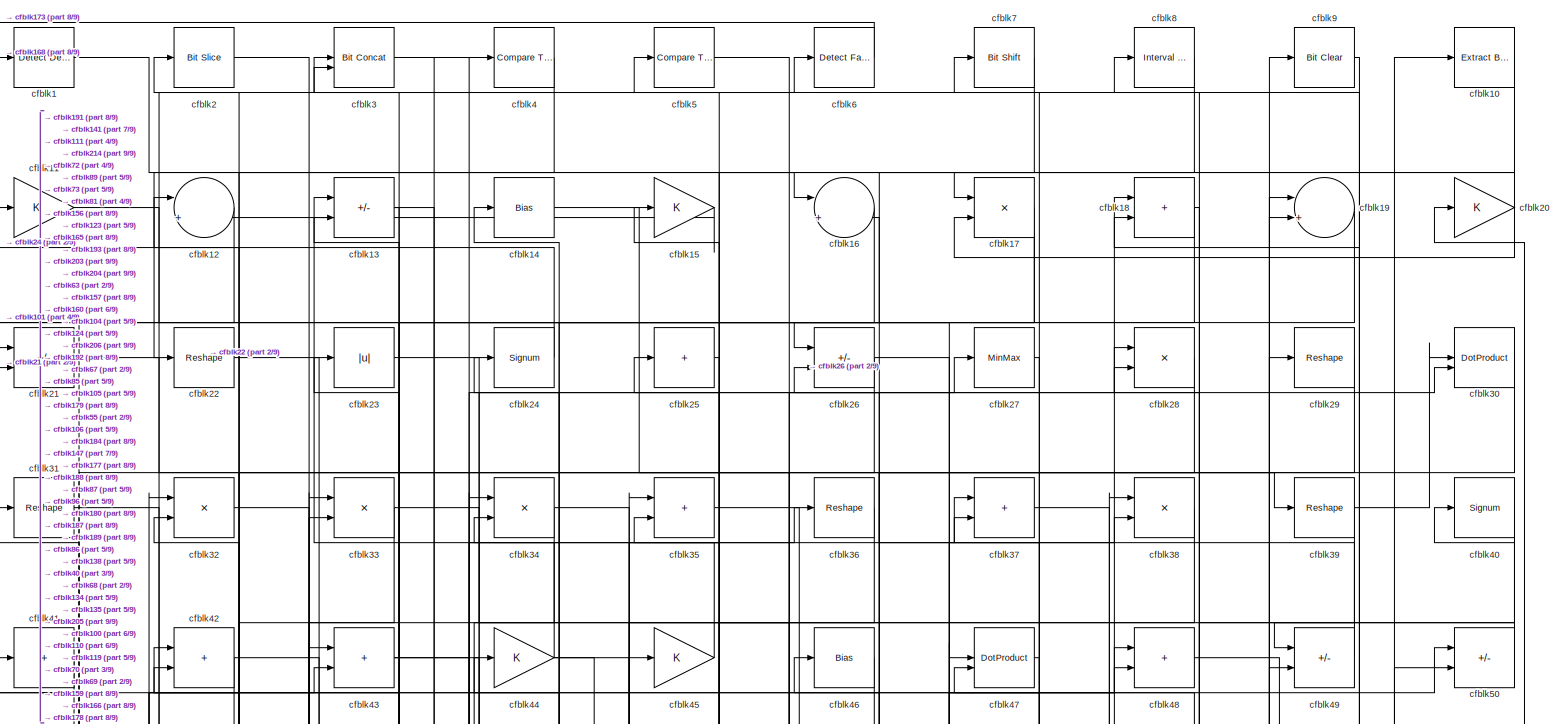
[diagram: root canvas - part 1/9, full width, top band]
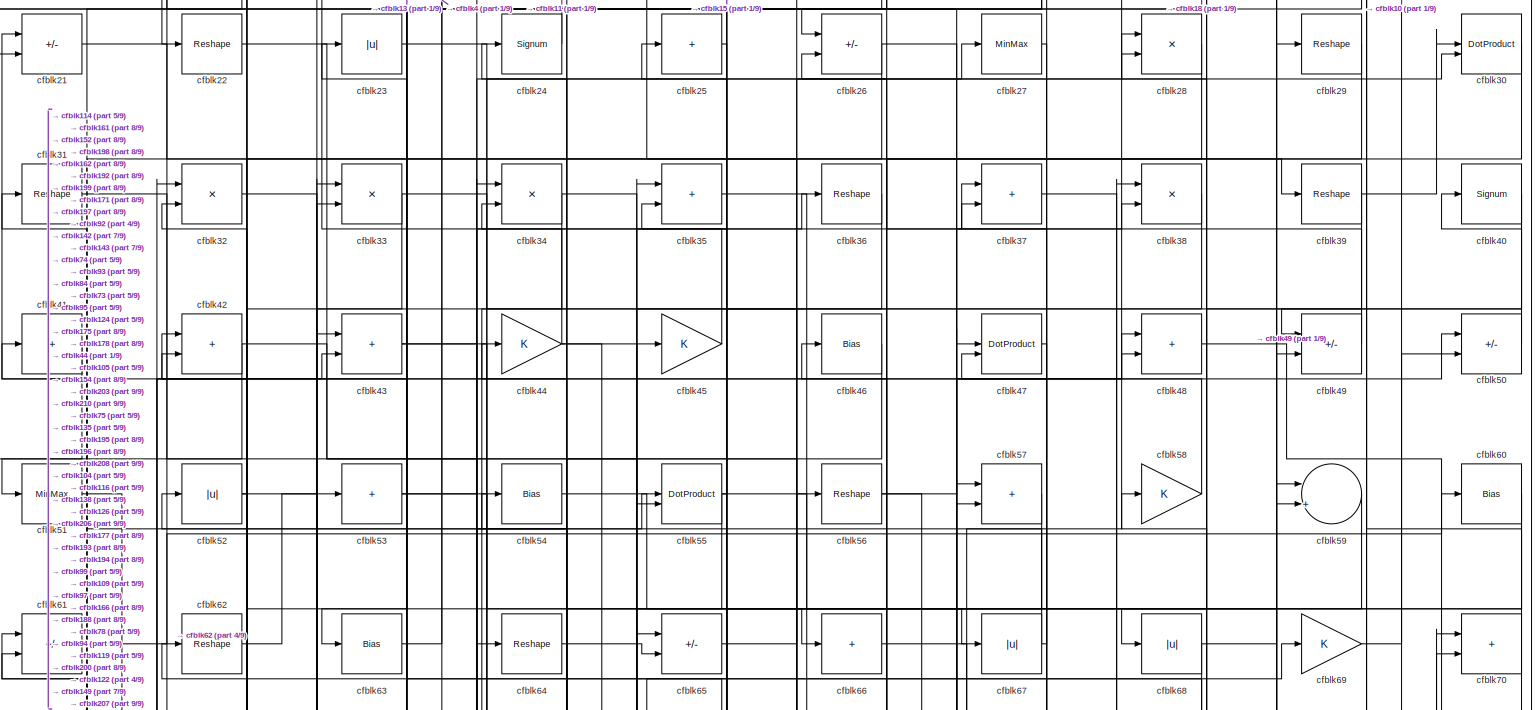
[diagram: root canvas - part 2/9, full width, top band]
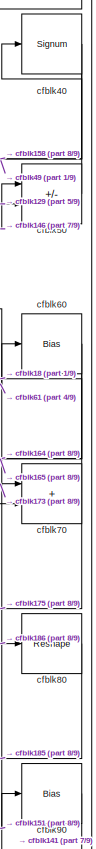
[diagram: root canvas - part 3/9, top right region]
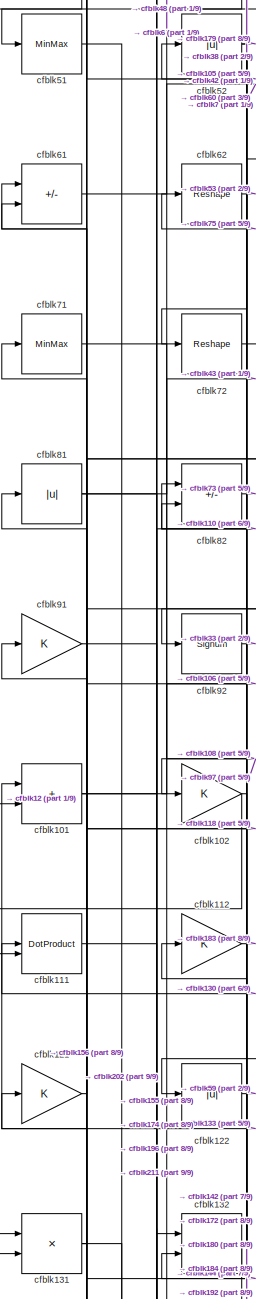
[diagram: root canvas - part 4/9, middle left region]
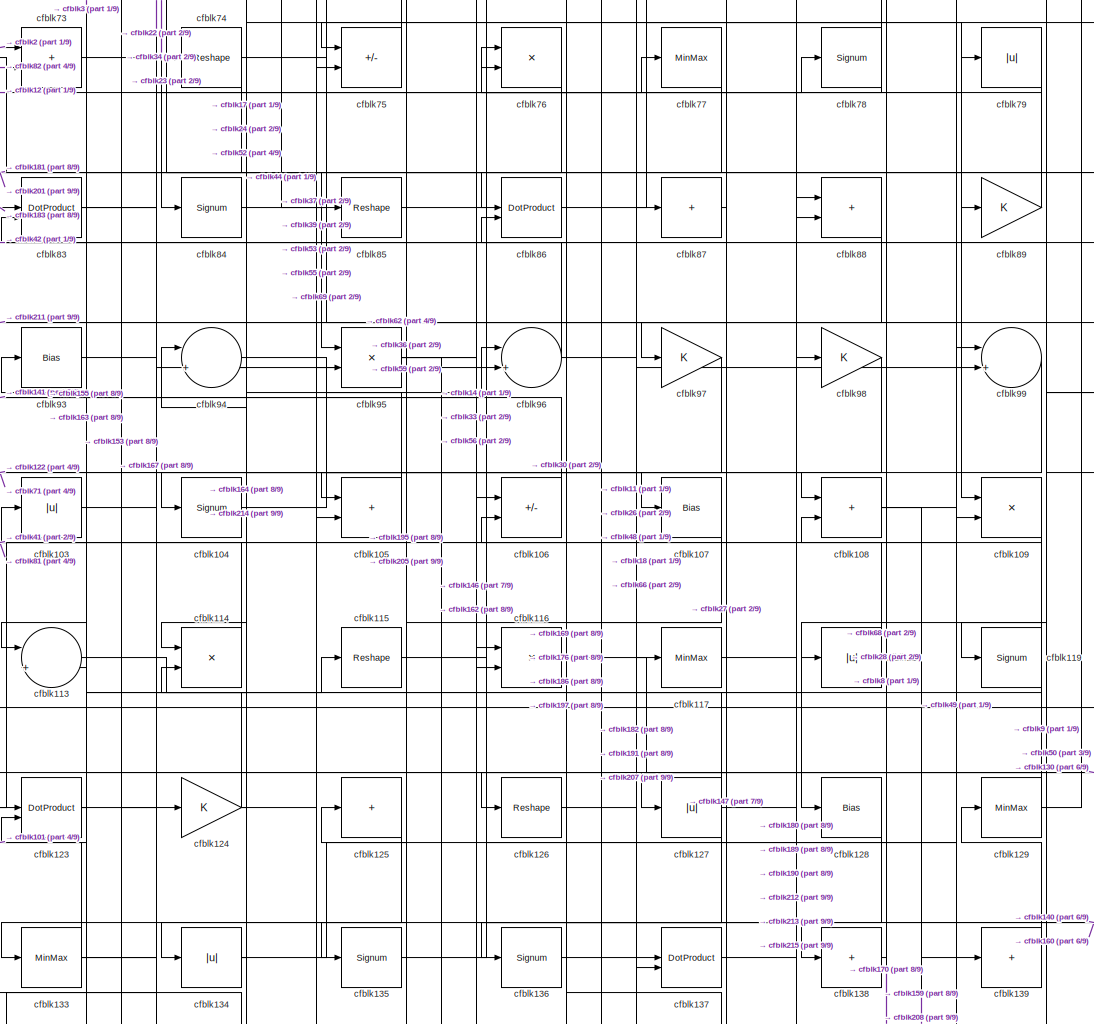
[diagram: root canvas - part 5/9, central region]
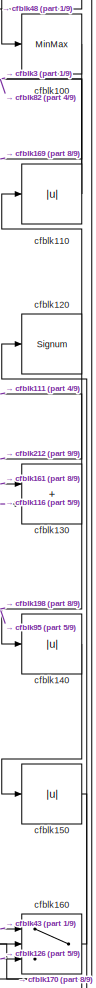
[diagram: root canvas - part 6/9, middle right region]
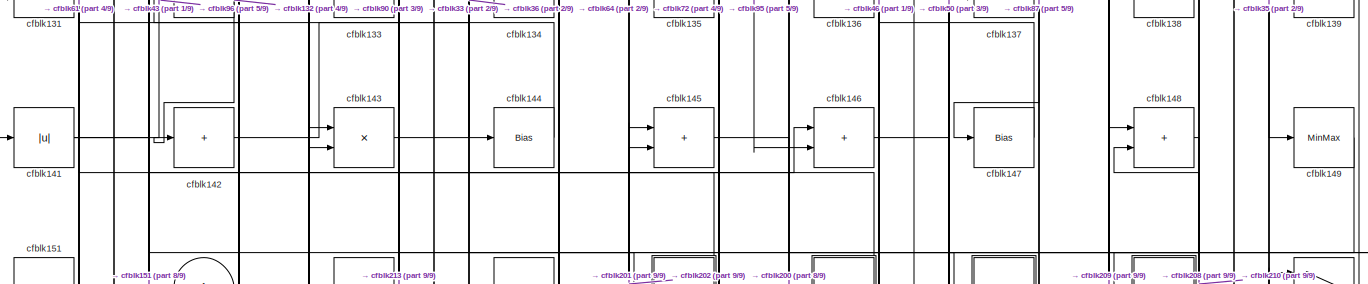
[diagram: root canvas - part 7/9, full width, middle band]
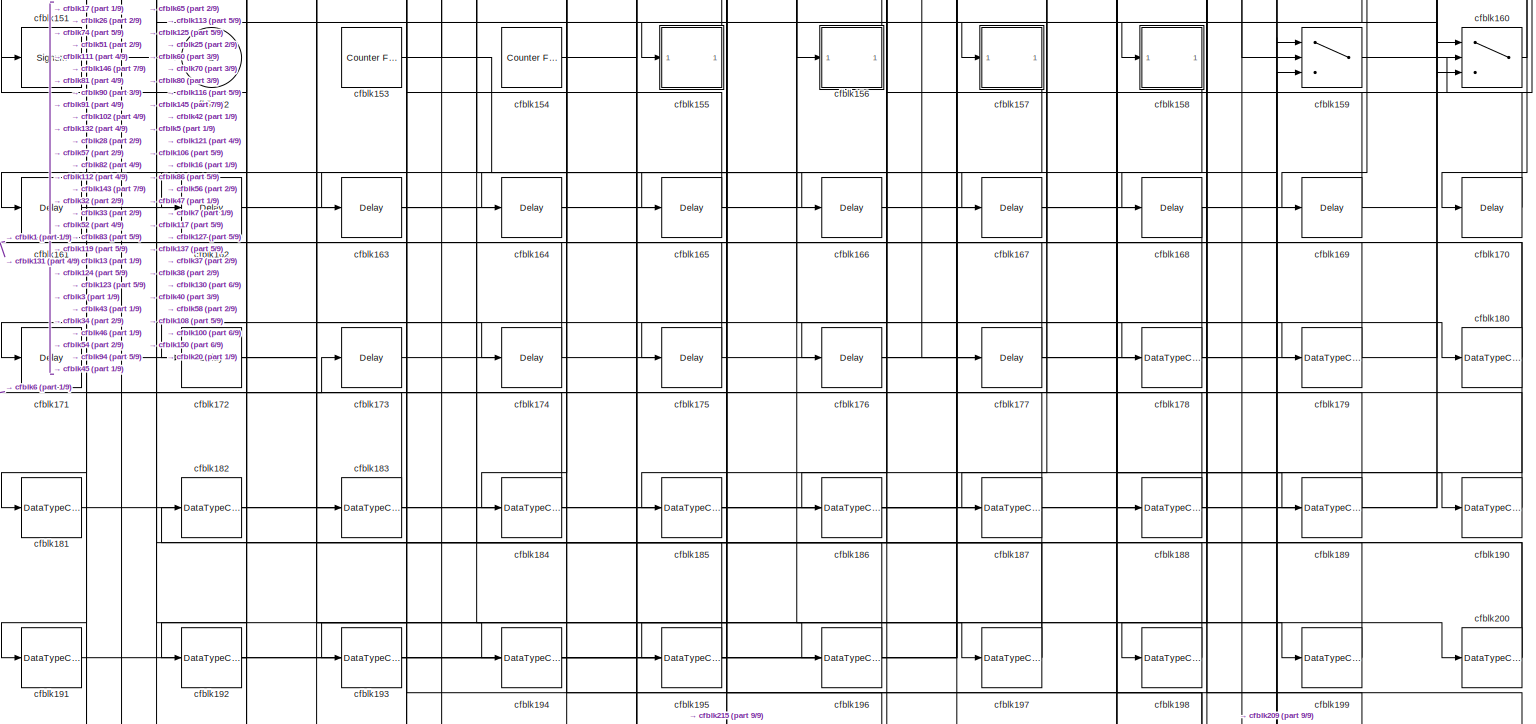
[diagram: root canvas - part 8/9, full width, bottom band]
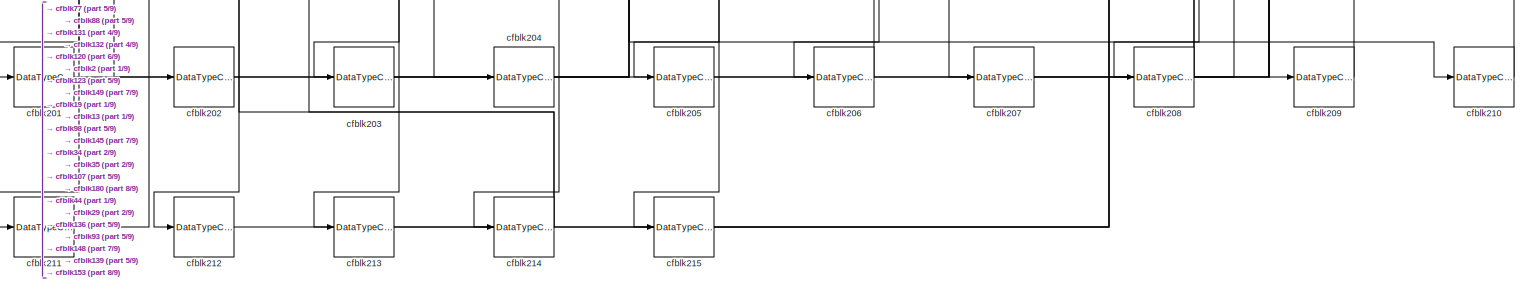
[diagram: root canvas - part 9/9, full width, bottom band]
MODEL slx_3a15e1955da8
KIND model
CONFIG AbsTol = auto
CONFIG EnableMultiTasking = off
CONFIG FixedStep = auto
CONFIG MaxStep = auto
CONFIG MinStep = auto
CONFIG RelTol = 1e-3
CONFIG SampleTimeConstraint = Unconstrained
CONFIG SolverName = VariableStepAuto
CONFIG StartTime = 0.0
CONFIG StopTime = 10.0
BLOCK [Reference] cfblk1  REF=simulink/Logic and Bit
Operations/Detect
Decrease
  LibrarySourceBlock = hdlsllib/Logic and Bit\nOperations/Detect\nDecrease
  SourceBlock = simulink/Logic and Bit\nOperations/Detect\nDecrease
  SourceType = Detect Decrease
BLOCK [Reference] cfblk10  REF=simulink/Logic and Bit
Operations/Extract Bits
  LibrarySourceBlock = hdlsllib/Logic and Bit\nOperations/Extract Bits
  SourceBlock = simulink/Logic and Bit\nOperations/Extract Bits
  SourceType = Extract Bits
BLOCK [MinMax] cfblk100
BLOCK [Sum] cfblk101
  IconShape = rectangular
BLOCK [Gain] cfblk102
BLOCK [Abs] cfblk103
  SaturateOnIntegerOverflow = off
BLOCK [Signum] cfblk104
BLOCK [Sum] cfblk105
  IconShape = rectangular
BLOCK [Sum] cfblk106
  IconShape = rectangular
  Inputs = +-
BLOCK [Bias] cfblk107
  Bias = 0.0
  SaturateOnIntegerOverflow = off
BLOCK [Sum] cfblk108
  IconShape = rectangular
BLOCK [Product] cfblk109
  Inputs = */
  RndMeth = Zero
  SaturateOnIntegerOverflow = on
BLOCK [Gain] cfblk11
BLOCK [Abs] cfblk110
  SaturateOnIntegerOverflow = off
BLOCK [DotProduct] cfblk111
  OutDataTypeStr = Inherit: Inherit via internal rule
BLOCK [Gain] cfblk112
BLOCK [Sum] cfblk113
  Inputs = |++
BLOCK [Product] cfblk114
  Inputs = */
  RndMeth = Zero
  SaturateOnIntegerOverflow = on
BLOCK [Reshape] cfblk115
BLOCK [Product] cfblk116
  Inputs = */
  RndMeth = Zero
  SaturateOnIntegerOverflow = on
BLOCK [MinMax] cfblk117
BLOCK [Abs] cfblk118
  SaturateOnIntegerOverflow = off
BLOCK [Signum] cfblk119
BLOCK [Sum] cfblk12
  Inputs = |++
BLOCK [Signum] cfblk120
BLOCK [Gain] cfblk121
BLOCK [Abs] cfblk122
  SaturateOnIntegerOverflow = off
BLOCK [DotProduct] cfblk123
  OutDataTypeStr = Inherit: Inherit via internal rule
BLOCK [Gain] cfblk124
BLOCK [Sum] cfblk125
  IconShape = rectangular
  Inputs = +
BLOCK [Reshape] cfblk126
BLOCK [Abs] cfblk127
  SaturateOnIntegerOverflow = off
BLOCK [Bias] cfblk128
  Bias = 0.0
  SaturateOnIntegerOverflow = off
BLOCK [MinMax] cfblk129
BLOCK [Sum] cfblk13
  IconShape = rectangular
  Inputs = +-
BLOCK [Sum] cfblk130
  IconShape = rectangular
BLOCK [Product] cfblk131
  Inputs = */
  RndMeth = Zero
  SaturateOnIntegerOverflow = on
BLOCK [Sum] cfblk132
  IconShape = rectangular
BLOCK [MinMax] cfblk133
BLOCK [Abs] cfblk134
  SaturateOnIntegerOverflow = off
BLOCK [Signum] cfblk135
BLOCK [Signum] cfblk136
BLOCK [DotProduct] cfblk137
  OutDataTypeStr = Inherit: Inherit via internal rule
BLOCK [Sum] cfblk138
  IconShape = rectangular
  Inputs = +
BLOCK [Sum] cfblk139
  IconShape = rectangular
  Inputs = +
BLOCK [Bias] cfblk14
  Bias = 0.0
  SaturateOnIntegerOverflow = off
BLOCK [Abs] cfblk140
  SaturateOnIntegerOverflow = off
BLOCK [Abs] cfblk141
  SaturateOnIntegerOverflow = off
BLOCK [Sum] cfblk142
  IconShape = rectangular
  Inputs = +
BLOCK [Product] cfblk143
  Inputs = */
  RndMeth = Zero
  SaturateOnIntegerOverflow = on
BLOCK [Bias] cfblk144
  Bias = 0.0
  SaturateOnIntegerOverflow = off
BLOCK [Sum] cfblk145
  IconShape = rectangular
BLOCK [Sum] cfblk146
  IconShape = rectangular
BLOCK [Bias] cfblk147
  Bias = 0.0
  SaturateOnIntegerOverflow = off
BLOCK [Sum] cfblk148
  IconShape = rectangular
BLOCK [MinMax] cfblk149
BLOCK [Gain] cfblk15
BLOCK [Abs] cfblk150
  SaturateOnIntegerOverflow = off
BLOCK [Signum] cfblk151
BLOCK [Outport] cfblk152
  VectorParamsAs1DForOutWhenUnconnected = off
BLOCK [Reference] cfblk153  REF=hdlsllib/Sources/Counter
Free-Running
  SourceBlock = hdlsllib/Sources/Counter\nFree-Running
  SourceType = Counter Free-Running
BLOCK [Reference] cfblk154  REF=hdlsllib/Sources/Counter
Free-Running
  SourceBlock = hdlsllib/Sources/Counter\nFree-Running
  SourceType = Counter Free-Running
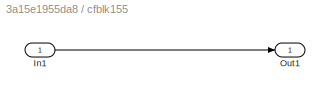
BLOCK [SubSystem] cfblk155
  LibrarySourceBlock = hdlsllib/Ports &\nSubsystems/Subsystem
BLOCK [Inport] cfblk155/In1
BLOCK [Outport] cfblk155/Out1
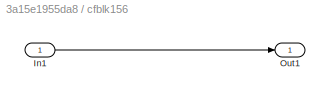
BLOCK [SubSystem] cfblk156
  LibrarySourceBlock = hdlsllib/Ports &\nSubsystems/Subsystem
BLOCK [Inport] cfblk156/In1
BLOCK [Outport] cfblk156/Out1
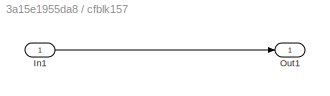
BLOCK [SubSystem] cfblk157
  LibrarySourceBlock = hdlsllib/Ports &\nSubsystems/Subsystem
BLOCK [Inport] cfblk157/In1
BLOCK [Outport] cfblk157/Out1
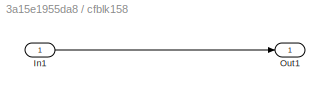
BLOCK [SubSystem] cfblk158
  LibrarySourceBlock = hdlsllib/Ports &\nSubsystems/Subsystem
BLOCK [Inport] cfblk158/In1
BLOCK [Outport] cfblk158/Out1
BLOCK [Switch] cfblk159
  InputSameDT = off
  SaturateOnIntegerOverflow = off
BLOCK [Sum] cfblk16
  Inputs = |++
BLOCK [Switch] cfblk160
  InputSameDT = off
  SaturateOnIntegerOverflow = off
BLOCK [Delay] cfblk161
  InputPortMap = u0
  SampleTime = 1
BLOCK [Delay] cfblk162
  InputPortMap = u0
  SampleTime = 1
BLOCK [Delay] cfblk163
  InputPortMap = u0
  SampleTime = 1
BLOCK [Delay] cfblk164
  InputPortMap = u0
  SampleTime = 1
BLOCK [Delay] cfblk165
  InputPortMap = u0
  SampleTime = 1
BLOCK [Delay] cfblk166
  InputPortMap = u0
  SampleTime = 1
BLOCK [Delay] cfblk167
  InputPortMap = u0
  SampleTime = 1
BLOCK [Delay] cfblk168
  InputPortMap = u0
  SampleTime = 1
BLOCK [Delay] cfblk169
  InputPortMap = u0
  SampleTime = 1
BLOCK [Product] cfblk17
  Inputs = */
  RndMeth = Zero
  SaturateOnIntegerOverflow = on
BLOCK [Delay] cfblk170
  InputPortMap = u0
  SampleTime = 1
BLOCK [Delay] cfblk171
  InputPortMap = u0
  SampleTime = 1
BLOCK [Delay] cfblk172
  InputPortMap = u0
  SampleTime = 1
BLOCK [Delay] cfblk173
  InputPortMap = u0
  SampleTime = 1
BLOCK [Delay] cfblk174
  InputPortMap = u0
  SampleTime = 1
BLOCK [Delay] cfblk175
  InputPortMap = u0
  SampleTime = 1
BLOCK [Delay] cfblk176
  InputPortMap = u0
  SampleTime = 1
BLOCK [Delay] cfblk177
  InputPortMap = u0
  SampleTime = 1
BLOCK [DataTypeConversion] cfblk178
  OutDataTypeStr = uint8
  RndMeth = Floor
  SaturateOnIntegerOverflow = off
BLOCK [DataTypeConversion] cfblk179
  OutDataTypeStr = uint8
  RndMeth = Floor
  SaturateOnIntegerOverflow = off
BLOCK [Sum] cfblk18
  IconShape = rectangular
BLOCK [DataTypeConversion] cfblk180
  RndMeth = Floor
  SaturateOnIntegerOverflow = off
BLOCK [DataTypeConversion] cfblk181
  OutDataTypeStr = uint8
  RndMeth = Floor
  SaturateOnIntegerOverflow = off
BLOCK [DataTypeConversion] cfblk182
  OutDataTypeStr = uint8
  RndMeth = Floor
  SaturateOnIntegerOverflow = off
BLOCK [DataTypeConversion] cfblk183
  OutDataTypeStr = uint8
  RndMeth = Floor
  SaturateOnIntegerOverflow = off
BLOCK [DataTypeConversion] cfblk184
  OutDataTypeStr = uint8
  RndMeth = Floor
  SaturateOnIntegerOverflow = off
BLOCK [DataTypeConversion] cfblk185
  OutDataTypeStr = uint8
  RndMeth = Floor
  SaturateOnIntegerOverflow = off
BLOCK [DataTypeConversion] cfblk186
  OutDataTypeStr = uint8
  RndMeth = Floor
  SaturateOnIntegerOverflow = off
BLOCK [DataTypeConversion] cfblk187
  RndMeth = Floor
  SaturateOnIntegerOverflow = off
BLOCK [DataTypeConversion] cfblk188
  OutDataTypeStr = uint8
  RndMeth = Floor
  SaturateOnIntegerOverflow = off
BLOCK [DataTypeConversion] cfblk189
  OutDataTypeStr = uint8
  RndMeth = Floor
  SaturateOnIntegerOverflow = off
BLOCK [Sum] cfblk19
  Inputs = |++
BLOCK [DataTypeConversion] cfblk190
  OutDataTypeStr = uint8
  RndMeth = Floor
  SaturateOnIntegerOverflow = off
BLOCK [DataTypeConversion] cfblk191
  OutDataTypeStr = uint8
  RndMeth = Floor
  SaturateOnIntegerOverflow = off
BLOCK [DataTypeConversion] cfblk192
  RndMeth = Floor
  SaturateOnIntegerOverflow = off
BLOCK [DataTypeConversion] cfblk193
  OutDataTypeStr = uint8
  RndMeth = Floor
  SaturateOnIntegerOverflow = off
BLOCK [DataTypeConversion] cfblk194
  OutDataTypeStr = uint8
  RndMeth = Floor
  SaturateOnIntegerOverflow = off
BLOCK [DataTypeConversion] cfblk195
  RndMeth = Floor
  SaturateOnIntegerOverflow = off
BLOCK [DataTypeConversion] cfblk196
  OutDataTypeStr = uint8
  RndMeth = Floor
  SaturateOnIntegerOverflow = off
BLOCK [DataTypeConversion] cfblk197
  RndMeth = Floor
  SaturateOnIntegerOverflow = off
BLOCK [DataTypeConversion] cfblk198
  OutDataTypeStr = uint8
  RndMeth = Floor
  SaturateOnIntegerOverflow = off
BLOCK [DataTypeConversion] cfblk199
  OutDataTypeStr = uint8
  RndMeth = Floor
  SaturateOnIntegerOverflow = off
BLOCK [Reference] cfblk2  REF=hdlsllib/Logic and Bit
Operations/Bit Slice
  SourceBlock = hdlsllib/Logic and Bit\nOperations/Bit Slice
  SourceType = Bit Slice
BLOCK [Gain] cfblk20
BLOCK [DataTypeConversion] cfblk200
  RndMeth = Floor
  SaturateOnIntegerOverflow = off
BLOCK [DataTypeConversion] cfblk201
  OutDataTypeStr = uint8
  RndMeth = Floor
  SaturateOnIntegerOverflow = off
BLOCK [DataTypeConversion] cfblk202
  OutDataTypeStr = uint8
  RndMeth = Floor
  SaturateOnIntegerOverflow = off
BLOCK [DataTypeConversion] cfblk203
  OutDataTypeStr = uint8
  RndMeth = Floor
  SaturateOnIntegerOverflow = off
BLOCK [DataTypeConversion] cfblk204
  OutDataTypeStr = uint8
  RndMeth = Floor
  SaturateOnIntegerOverflow = off
BLOCK [DataTypeConversion] cfblk205
  OutDataTypeStr = uint8
  RndMeth = Floor
  SaturateOnIntegerOverflow = off
BLOCK [DataTypeConversion] cfblk206
  OutDataTypeStr = uint8
  RndMeth = Floor
  SaturateOnIntegerOverflow = off
BLOCK [DataTypeConversion] cfblk207
  OutDataTypeStr = uint8
  RndMeth = Floor
  SaturateOnIntegerOverflow = off
BLOCK [DataTypeConversion] cfblk208
  RndMeth = Floor
  SaturateOnIntegerOverflow = off
BLOCK [DataTypeConversion] cfblk209
  OutDataTypeStr = uint8
  RndMeth = Floor
  SaturateOnIntegerOverflow = off
BLOCK [Sum] cfblk21
  IconShape = rectangular
  Inputs = +-
BLOCK [DataTypeConversion] cfblk210
  OutDataTypeStr = uint8
  RndMeth = Floor
  SaturateOnIntegerOverflow = off
BLOCK [DataTypeConversion] cfblk211
  OutDataTypeStr = uint8
  RndMeth = Floor
  SaturateOnIntegerOverflow = off
BLOCK [DataTypeConversion] cfblk212
  OutDataTypeStr = uint8
  RndMeth = Floor
  SaturateOnIntegerOverflow = off
BLOCK [DataTypeConversion] cfblk213
  OutDataTypeStr = uint8
  RndMeth = Floor
  SaturateOnIntegerOverflow = off
BLOCK [DataTypeConversion] cfblk214
  RndMeth = Floor
  SaturateOnIntegerOverflow = off
BLOCK [DataTypeConversion] cfblk215
  OutDataTypeStr = uint8
  RndMeth = Floor
  SaturateOnIntegerOverflow = off
BLOCK [Reshape] cfblk22
BLOCK [Abs] cfblk23
  SaturateOnIntegerOverflow = off
BLOCK [Signum] cfblk24
BLOCK [Sum] cfblk25
  IconShape = rectangular
  Inputs = +
BLOCK [Sum] cfblk26
  IconShape = rectangular
  Inputs = +-
BLOCK [MinMax] cfblk27
BLOCK [Product] cfblk28
  Inputs = */
  RndMeth = Zero
  SaturateOnIntegerOverflow = on
BLOCK [Reshape] cfblk29
BLOCK [Reference] cfblk3  REF=hdlsllib/Logic and Bit
Operations/Bit Concat
  SourceBlock = hdlsllib/Logic and Bit\nOperations/Bit Concat
  SourceType = Bit Concat
BLOCK [DotProduct] cfblk30
  OutDataTypeStr = Inherit: Inherit via internal rule
BLOCK [Reshape] cfblk31
BLOCK [Product] cfblk32
  Inputs = */
  RndMeth = Zero
  SaturateOnIntegerOverflow = on
BLOCK [Product] cfblk33
  Inputs = */
  RndMeth = Zero
  SaturateOnIntegerOverflow = on
BLOCK [Product] cfblk34
  Inputs = */
  RndMeth = Zero
  SaturateOnIntegerOverflow = on
BLOCK [Sum] cfblk35
  IconShape = rectangular
BLOCK [Reshape] cfblk36
BLOCK [Sum] cfblk37
  IconShape = rectangular
BLOCK [Product] cfblk38
  Inputs = */
  RndMeth = Zero
  SaturateOnIntegerOverflow = on
BLOCK [Reshape] cfblk39
BLOCK [Reference] cfblk4  REF=hdlsllib/Logic and Bit
Operations/Compare
To Zero
  SourceBlock = hdlsllib/Logic and Bit\nOperations/Compare\nTo Zero
  SourceType = Compare To Zero
BLOCK [Signum] cfblk40
BLOCK [Sum] cfblk41
  IconShape = rectangular
  Inputs = +
BLOCK [Sum] cfblk42
  IconShape = rectangular
BLOCK [Sum] cfblk43
  IconShape = rectangular
BLOCK [Gain] cfblk44
BLOCK [Gain] cfblk45
BLOCK [Bias] cfblk46
  Bias = 0.0
  SaturateOnIntegerOverflow = off
BLOCK [DotProduct] cfblk47
  OutDataTypeStr = Inherit: Inherit via internal rule
BLOCK [Sum] cfblk48
  IconShape = rectangular
BLOCK [Sum] cfblk49
  IconShape = rectangular
  Inputs = +-
BLOCK [Reference] cfblk5  REF=hdlsllib/Logic and Bit
Operations/Compare
To Zero
  SourceBlock = hdlsllib/Logic and Bit\nOperations/Compare\nTo Zero
  SourceType = Compare To Zero
BLOCK [Sum] cfblk50
  IconShape = rectangular
  Inputs = +-
BLOCK [MinMax] cfblk51
BLOCK [Abs] cfblk52
  SaturateOnIntegerOverflow = off
BLOCK [Sum] cfblk53
  IconShape = rectangular
  Inputs = +
BLOCK [Bias] cfblk54
  Bias = 0.0
  SaturateOnIntegerOverflow = off
BLOCK [DotProduct] cfblk55
  OutDataTypeStr = Inherit: Inherit via internal rule
BLOCK [Reshape] cfblk56
BLOCK [Sum] cfblk57
  IconShape = rectangular
BLOCK [Gain] cfblk58
BLOCK [Sum] cfblk59
  Inputs = |++
BLOCK [Reference] cfblk6  REF=hdlsllib/Logic and Bit
Operations/Detect Fall
Nonpositive
  SourceBlock = hdlsllib/Logic and Bit\nOperations/Detect Fall\nNonpositive
  SourceType = Detect Fall Nonpositive
BLOCK [Bias] cfblk60
  Bias = 0.0
  SaturateOnIntegerOverflow = off
BLOCK [Sum] cfblk61
  IconShape = rectangular
  Inputs = +-
BLOCK [Reshape] cfblk62
BLOCK [Bias] cfblk63
  Bias = 0.0
  SaturateOnIntegerOverflow = off
BLOCK [Reshape] cfblk64
BLOCK [Sum] cfblk65
  IconShape = rectangular
  Inputs = +-
BLOCK [Sum] cfblk66
  IconShape = rectangular
  Inputs = +
BLOCK [Abs] cfblk67
  SaturateOnIntegerOverflow = off
BLOCK [Abs] cfblk68
  SaturateOnIntegerOverflow = off
BLOCK [Gain] cfblk69
BLOCK [Reference] cfblk7  REF=hdlsllib/Logic and Bit
Operations/Bit Shift
  SourceBlock = hdlsllib/Logic and Bit\nOperations/Bit Shift
  SourceType = Bit Shift
BLOCK [Sum] cfblk70
  IconShape = rectangular
BLOCK [MinMax] cfblk71
BLOCK [Reshape] cfblk72
BLOCK [Sum] cfblk73
  IconShape = rectangular
BLOCK [Reshape] cfblk74
BLOCK [Sum] cfblk75
  IconShape = rectangular
  Inputs = +-
BLOCK [Product] cfblk76
  Inputs = */
  RndMeth = Zero
  SaturateOnIntegerOverflow = on
BLOCK [MinMax] cfblk77
BLOCK [Signum] cfblk78
BLOCK [Abs] cfblk79
  SaturateOnIntegerOverflow = off
BLOCK [Reference] cfblk8  REF=hdlsllib/Logic and Bit
Operations/Interval Test
  SourceBlock = hdlsllib/Logic and Bit\nOperations/Interval Test
  SourceType = Interval Test
BLOCK [Reshape] cfblk80
BLOCK [Abs] cfblk81
  SaturateOnIntegerOverflow = off
BLOCK [Sum] cfblk82
  IconShape = rectangular
  Inputs = +-
BLOCK [DotProduct] cfblk83
  OutDataTypeStr = Inherit: Inherit via internal rule
BLOCK [Signum] cfblk84
BLOCK [Reshape] cfblk85
BLOCK [DotProduct] cfblk86
  OutDataTypeStr = Inherit: Inherit via internal rule
BLOCK [Sum] cfblk87
  IconShape = rectangular
  Inputs = +
BLOCK [Sum] cfblk88
  IconShape = rectangular
BLOCK [Gain] cfblk89
BLOCK [Reference] cfblk9  REF=simulink/Logic and Bit
Operations/Bit Clear
  LibrarySourceBlock = hdlsllib/Logic and Bit\nOperations/Bit Clear
  SourceBlock = simulink/Logic and Bit\nOperations/Bit Clear
  SourceType = Bit Clear
BLOCK [Bias] cfblk90
  Bias = 0.0
  SaturateOnIntegerOverflow = off
BLOCK [Gain] cfblk91
BLOCK [Signum] cfblk92
BLOCK [Bias] cfblk93
  Bias = 0.0
  SaturateOnIntegerOverflow = off
BLOCK [Sum] cfblk94
  Inputs = |++
BLOCK [Product] cfblk95
  Inputs = */
  RndMeth = Zero
  SaturateOnIntegerOverflow = on
BLOCK [Sum] cfblk96
  Inputs = |++
BLOCK [Gain] cfblk97
BLOCK [Gain] cfblk98
BLOCK [Sum] cfblk99
  Inputs = |++
LINE cfblk100:1 -> cfblk169:1
NET cfblk101:1 -> cfblk48:2, cfblk6:1
NET cfblk102:1 -> cfblk131:2, cfblk172:1
LINE cfblk103:1 -> cfblk79:1
LINE cfblk104:1 -> cfblk56:1
LINE cfblk105:1 -> cfblk52:1
LINE cfblk106:1 -> cfblk71:1
NET cfblk107:1 -> cfblk136:1, cfblk205:1
NET cfblk108:1 -> cfblk159:2, cfblk99:1
LINE cfblk109:1 -> cfblk128:1
LINE cfblk10:1 -> cfblk26:1
NET cfblk110:1 -> cfblk3:2, cfblk82:1
LINE cfblk111:1 -> cfblk155:1
LINE cfblk112:1 -> cfblk183:1
LINE cfblk113:1 -> cfblk115:1
LINE cfblk114:1 -> cfblk41:1
LINE cfblk115:1 -> cfblk77:1
LINE cfblk116:1 -> cfblk130:2
LINE cfblk117:1 -> cfblk190:1
LINE cfblk118:1 -> cfblk81:1
NET cfblk119:1 -> cfblk163:1, cfblk28:1
LINE cfblk11:1 -> cfblk87:1
NET cfblk120:1 -> cfblk110:1, cfblk212:1
LINE cfblk121:1 -> cfblk61:2
LINE cfblk122:1 -> cfblk59:1
NET cfblk123:1 -> cfblk167:1, cfblk3:1
NET cfblk124:1 -> cfblk24:1, cfblk37:2, cfblk42:1
LINE cfblk125:1 -> cfblk133:1
LINE cfblk126:1 -> cfblk160:3
NET cfblk127:1 -> cfblk176:1, cfblk186:1, cfblk189:1, cfblk76:1
LINE cfblk128:1 -> cfblk134:1
NET cfblk129:1 -> cfblk103:1, cfblk50:2
LINE cfblk12:1 -> cfblk101:2
NET cfblk130:1 -> cfblk111:1, cfblk198:1
NET cfblk131:1 -> cfblk202:1, cfblk91:1
LINE cfblk132:1 -> cfblk142:1
NET cfblk133:1 -> cfblk101:1, cfblk118:1, cfblk96:2
NET cfblk134:1 -> cfblk114:2, cfblk49:2
LINE cfblk135:1 -> cfblk9:1
LINE cfblk136:1 -> cfblk207:1
LINE cfblk137:1 -> cfblk180:1
LINE cfblk138:1 -> cfblk8:1
LINE cfblk139:1 -> cfblk129:1
NET cfblk13:1 -> cfblk204:1, cfblk63:1
LINE cfblk140:1 -> cfblk150:1
NET cfblk141:1 -> cfblk43:2, cfblk96:1
LINE cfblk142:1 -> cfblk64:1
LINE cfblk143:1 -> cfblk36:1
LINE cfblk144:1 -> cfblk61:1
LINE cfblk145:1 -> cfblk200:1
LINE cfblk146:1 -> cfblk50:1
LINE cfblk147:1 -> cfblk46:1
LINE cfblk148:1 -> cfblk208:1
LINE cfblk149:1 -> cfblk213:1
LINE cfblk14:1 -> cfblk106:1
LINE cfblk150:1 -> cfblk170:1
NET cfblk151:1 -> cfblk146:1, cfblk90:1
NET cfblk153:1 -> cfblk124:1, cfblk209:1
LINE cfblk154:1 -> cfblk65:1
LINE cfblk155/In1:1 -> cfblk155/Out1:1
LINE cfblk155:1 -> cfblk113:2
LINE cfblk156/In1:1 -> cfblk156/Out1:1
LINE cfblk156:1 -> cfblk121:1
LINE cfblk157/In1:1 -> cfblk157/Out1:1
LINE cfblk157:1 -> cfblk171:1
LINE cfblk158/In1:1 -> cfblk158/Out1:1
LINE cfblk158:1 -> cfblk168:1
LINE cfblk159:1 -> cfblk20:1
LINE cfblk15:1 -> cfblk12:2
LINE cfblk160:1 -> cfblk120:1
LINE cfblk161:1 -> cfblk130:1
LINE cfblk162:1 -> cfblk116:2
LINE cfblk163:1 -> cfblk199:1
LINE cfblk164:1 -> cfblk94:1
LINE cfblk165:1 -> cfblk13:2
LINE cfblk166:1 -> cfblk38:1
LINE cfblk167:1 -> cfblk159:1
LINE cfblk168:1 -> cfblk1:1
LINE cfblk169:1 -> cfblk106:2
LINE cfblk16:1 -> cfblk193:1
LINE cfblk170:1 -> cfblk108:2
LINE cfblk171:1 -> cfblk33:1
LINE cfblk172:1 -> cfblk194:1
LINE cfblk173:1 -> cfblk70:1
LINE cfblk174:1 -> cfblk131:1
LINE cfblk175:1 -> cfblk34:2
LINE cfblk176:1 -> cfblk159:3
LINE cfblk177:1 -> cfblk16:2
LINE cfblk178:1 -> cfblk54:1
LINE cfblk179:1 -> cfblk5:1
NET cfblk17:1 -> cfblk104:1, cfblk191:1
NET cfblk180:1 -> cfblk215:1, cfblk7:1, cfblk82:2
LINE cfblk181:1 -> cfblk137:1
LINE cfblk182:1 -> cfblk137:2
LINE cfblk183:1 -> cfblk83:1
LINE cfblk184:1 -> cfblk112:1
LINE cfblk185:1 -> cfblk70:2
LINE cfblk186:1 -> cfblk80:1
NET cfblk187:1 -> cfblk151:1, cfblk182:1
LINE cfblk188:1 -> cfblk47:1
LINE cfblk189:1 -> cfblk47:2
NET cfblk18:1 -> cfblk21:2, cfblk68:1
LINE cfblk190:1 -> cfblk83:2
LINE cfblk191:1 -> cfblk117:1
NET cfblk192:1 -> cfblk132:2, cfblk45:1
LINE cfblk193:1 -> cfblk57:1
LINE cfblk194:1 -> cfblk57:2
NET cfblk195:1 -> cfblk123:2, cfblk125:1
LINE cfblk196:1 -> cfblk25:1
NET cfblk197:1 -> cfblk34:1, cfblk86:2
LINE cfblk198:1 -> cfblk32:1
LINE cfblk199:1 -> cfblk32:2
LINE cfblk19:1 -> cfblk203:1
LINE cfblk1:1 -> cfblk16:1
NET cfblk200:1 -> cfblk143:1, cfblk58:1
LINE cfblk201:1 -> cfblk145:1
LINE cfblk202:1 -> cfblk145:2
LINE cfblk203:1 -> cfblk35:1
LINE cfblk204:1 -> cfblk19:1
LINE cfblk205:1 -> cfblk19:2
LINE cfblk206:1 -> cfblk44:1
LINE cfblk207:1 -> cfblk29:1
NET cfblk208:1 -> cfblk139:1, cfblk35:2, cfblk93:1
LINE cfblk209:1 -> cfblk148:1
NET cfblk20:1 -> cfblk17:1, cfblk17:2
LINE cfblk210:1 -> cfblk148:2
LINE cfblk211:1 -> cfblk132:1
LINE cfblk212:1 -> cfblk88:1
LINE cfblk213:1 -> cfblk88:2
NET cfblk214:1 -> cfblk123:1, cfblk2:1
LINE cfblk215:1 -> cfblk98:1
LINE cfblk21:1 -> cfblk39:1
LINE cfblk22:1 -> cfblk74:1
LINE cfblk23:1 -> cfblk95:1
LINE cfblk24:1 -> cfblk11:1
LINE cfblk25:1 -> cfblk195:1
NET cfblk26:1 -> cfblk161:1, cfblk99:2
LINE cfblk27:1 -> cfblk97:1
LINE cfblk28:1 -> cfblk162:1
LINE cfblk29:1 -> cfblk206:1
LINE cfblk2:1 -> cfblk73:1
LINE cfblk30:1 -> cfblk126:1
LINE cfblk31:1 -> cfblk55:2
LINE cfblk32:1 -> cfblk197:1
NET cfblk33:1 -> cfblk116:1, cfblk143:2
NET cfblk34:1 -> cfblk210:1, cfblk84:1
LINE cfblk35:1 -> cfblk149:1
LINE cfblk36:1 -> cfblk75:1
LINE cfblk37:1 -> cfblk188:1
LINE cfblk38:1 -> cfblk92:1
NET cfblk39:1 -> cfblk30:1, cfblk75:2
LINE cfblk3:1 -> cfblk166:1
NET cfblk40:1 -> cfblk158:1, cfblk49:1
LINE cfblk41:1 -> cfblk51:1
NET cfblk42:1 -> cfblk111:2, cfblk156:1
NET cfblk43:1 -> cfblk157:1, cfblk160:1
NET cfblk44:1 -> cfblk13:1, cfblk67:1, cfblk85:1
LINE cfblk45:1 -> cfblk14:1
LINE cfblk46:1 -> cfblk184:1
LINE cfblk47:1 -> cfblk187:1
LINE cfblk48:1 -> cfblk100:1
LINE cfblk49:1 -> cfblk26:2
LINE cfblk4:1 -> cfblk22:1
LINE cfblk50:1 -> cfblk40:1
LINE cfblk51:1 -> cfblk152:1
NET cfblk52:1 -> cfblk102:1, cfblk179:1
NET cfblk53:1 -> cfblk30:2, cfblk95:2
LINE cfblk54:1 -> cfblk66:1
NET cfblk55:1 -> cfblk105:2, cfblk138:1, cfblk15:1
NET cfblk56:1 -> cfblk177:1, cfblk38:2
LINE cfblk57:1 -> cfblk192:1
LINE cfblk58:1 -> cfblk21:1
LINE cfblk59:1 -> cfblk135:1
LINE cfblk5:1 -> cfblk178:1
NET cfblk60:1 -> cfblk164:1, cfblk165:1
LINE cfblk61:1 -> cfblk60:1
LINE cfblk62:1 -> cfblk53:1
LINE cfblk63:1 -> cfblk4:1
LINE cfblk64:1 -> cfblk65:2
LINE cfblk65:1 -> cfblk28:2
LINE cfblk66:1 -> cfblk109:1
NET cfblk67:1 -> cfblk31:1, cfblk37:1
NET cfblk68:1 -> cfblk59:2, cfblk94:2
LINE cfblk69:1 -> cfblk10:1
LINE cfblk6:1 -> cfblk173:1
NET cfblk70:1 -> cfblk175:1, cfblk18:2
LINE cfblk71:1 -> cfblk108:1
LINE cfblk72:1 -> cfblk144:1
LINE cfblk73:1 -> cfblk27:1
NET cfblk74:1 -> cfblk109:2, cfblk181:1
LINE cfblk75:1 -> cfblk62:1
LINE cfblk76:1 -> cfblk113:1
LINE cfblk77:1 -> cfblk201:1
NET cfblk78:1 -> cfblk23:1, cfblk76:2
LINE cfblk79:1 -> cfblk127:1
LINE cfblk7:1 -> cfblk72:1
LINE cfblk80:1 -> cfblk185:1
NET cfblk81:1 -> cfblk174:1, cfblk43:1
LINE cfblk82:1 -> cfblk73:2
NET cfblk83:1 -> cfblk78:1, cfblk86:1
LINE cfblk84:1 -> cfblk69:1
LINE cfblk85:1 -> cfblk89:1
LINE cfblk86:1 -> cfblk18:1
LINE cfblk87:1 -> cfblk147:1
LINE cfblk88:1 -> cfblk211:1
LINE cfblk89:1 -> cfblk12:1
LINE cfblk8:1 -> cfblk105:1
LINE cfblk90:1 -> cfblk141:1
LINE cfblk91:1 -> cfblk196:1
LINE cfblk92:1 -> cfblk33:2
LINE cfblk93:1 -> cfblk55:1
LINE cfblk94:1 -> cfblk107:1
NET cfblk95:1 -> cfblk140:1, cfblk146:2, cfblk160:2
NET cfblk96:1 -> cfblk42:2, cfblk48:1
LINE cfblk97:1 -> cfblk122:1
LINE cfblk98:1 -> cfblk214:1
LINE cfblk99:1 -> cfblk114:1
LINE cfblk9:1 -> cfblk119:1
note: NET lines group one-source signal fan-out (src -> all destinations, sorted); 1:1 wires keep LINE
